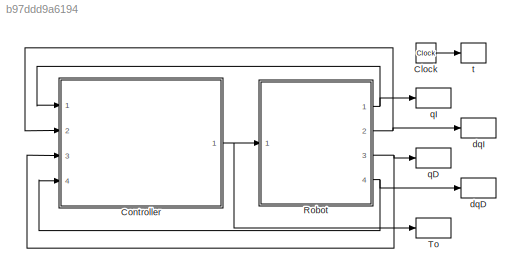
MODEL slx_b97ddd9a6194
KIND model
CONFIG AbsTol = auto
CONFIG FixedStep = t_step
CONFIG MaxStep = auto
CONFIG MinStep = auto
CONFIG RelTol = 1e-3
CONFIG SampleTimeConstraint = Unconstrained
CONFIG Solver = ode3
CONFIG SolverMode = Auto
CONFIG SolverName = ode3
CONFIG StartTime = 0.0
CONFIG StopTime = tf
BLOCK [Clock] Clock
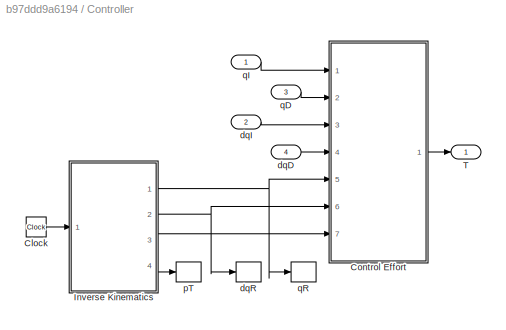
BLOCK [SubSystem] Controller
  Ports = [4, 1]
  RequestExecContextInheritance = off
BLOCK [Clock] Controller/Clock
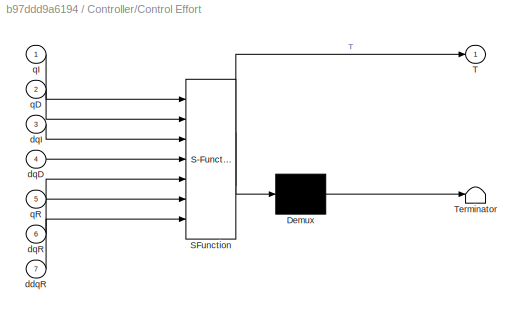
BLOCK [SubSystem] Controller/Control Effort
  ErrorFcn = Stateflow.Translate.translate
  PermitHierarchicalResolution = ExplicitOnly
  Ports = [7, 1]
  RequestExecContextInheritance = off
  SFBlockType = MATLAB Function
  TreatAsAtomicUnit = on
BLOCK [Demux] Controller/Control Effort/ Demux 
  Outputs = 1
  Ports = [1, 1]
BLOCK [S-Function] Controller/Control Effort/ SFunction 
  EnableBusSupport = on
  FunctionName = sf_sfun
  Parameters = J1,J2,J3,Kd,Kp,g,l3,lG2,lG3,m2,m3
  PortCounts = [7 2]
  Ports = [7, 2]
  Tag = Stateflow S-Function RmRmRmUS_Simulink 1
BLOCK [Terminator] Controller/Control Effort/ Terminator 
BLOCK [Outport] Controller/Control Effort/T
  IconDisplay = Port number
BLOCK [Inport] Controller/Control Effort/ddqR
  IconDisplay = Port number
  Port = 7
BLOCK [Inport] Controller/Control Effort/dqD
  IconDisplay = Port number
  Port = 4
BLOCK [Inport] Controller/Control Effort/dqI
  IconDisplay = Port number
  Port = 3
BLOCK [Inport] Controller/Control Effort/dqR
  IconDisplay = Port number
  Port = 6
BLOCK [Inport] Controller/Control Effort/qD
  IconDisplay = Port number
  Port = 2
BLOCK [Inport] Controller/Control Effort/qI
  IconDisplay = Port number
BLOCK [Inport] Controller/Control Effort/qR
  IconDisplay = Port number
  Port = 5
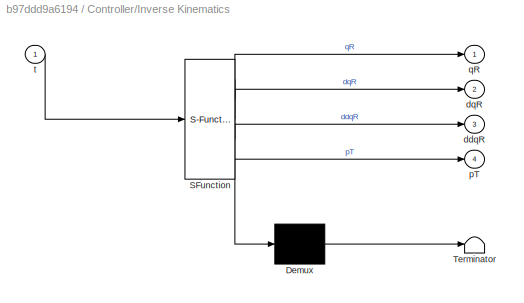
BLOCK [SubSystem] Controller/Inverse Kinematics
  ErrorFcn = Stateflow.Translate.translate
  PermitHierarchicalResolution = ExplicitOnly
  Ports = [1, 4]
  RequestExecContextInheritance = off
  SFBlockType = MATLAB Function
  TreatAsAtomicUnit = on
BLOCK [Demux] Controller/Inverse Kinematics/ Demux 
  Outputs = 1
  Ports = [1, 1]
BLOCK [S-Function] Controller/Inverse Kinematics/ SFunction 
  EnableBusSupport = on
  FunctionName = sf_sfun
  Parameters = a0,a1,a2,a3,a4,a5,l1,l2,l3,l4,lB,ndv,qB0,tf_ik,x0S,y0S,z0S
  PortCounts = [1 5]
  Ports = [1, 5]
  Tag = Stateflow S-Function RmRmRmUS_Simulink 3
BLOCK [Terminator] Controller/Inverse Kinematics/ Terminator 
BLOCK [Outport] Controller/Inverse Kinematics/ddqR
  IconDisplay = Port number
  Port = 3
BLOCK [Outport] Controller/Inverse Kinematics/dqR
  IconDisplay = Port number
  Port = 2
BLOCK [Outport] Controller/Inverse Kinematics/pT
  IconDisplay = Port number
  Port = 4
BLOCK [Outport] Controller/Inverse Kinematics/qR
  IconDisplay = Port number
BLOCK [Inport] Controller/Inverse Kinematics/t
  IconDisplay = Port number
BLOCK [Outport] Controller/T
  IconDisplay = Port number
BLOCK [Inport] Controller/dqD
  IconDisplay = Port number
  Port = 4
BLOCK [Inport] Controller/dqI
  IconDisplay = Port number
  Port = 2
BLOCK [ToWorkspace] Controller/dqR
  FixptAsFi = on
  MaxDataPoints = inf
  Ports = [1]
  SampleTime = -1
  Save2DSignal = 3-D array (concatenate along third dimension)
  VariableName = dqR
BLOCK [ToWorkspace] Controller/pT
  FixptAsFi = on
  MaxDataPoints = inf
  Ports = [1]
  SampleTime = -1
  Save2DSignal = 3-D array (concatenate along third dimension)
  VariableName = pT
BLOCK [Inport] Controller/qD
  IconDisplay = Port number
  Port = 3
BLOCK [Inport] Controller/qI
  IconDisplay = Port number
BLOCK [ToWorkspace] Controller/qR
  FixptAsFi = on
  MaxDataPoints = inf
  Ports = [1]
  SampleTime = -1
  Save2DSignal = 3-D array (concatenate along third dimension)
  VariableName = qR
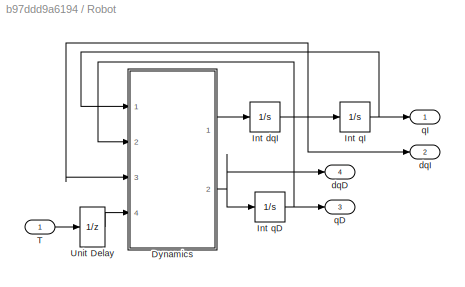
BLOCK [SubSystem] Robot
  Ports = [1, 4]
  RequestExecContextInheritance = off
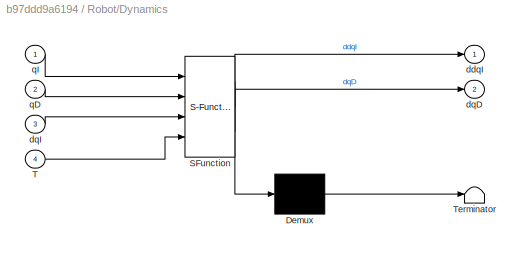
BLOCK [SubSystem] Robot/Dynamics
  ErrorFcn = Stateflow.Translate.translate
  PermitHierarchicalResolution = ExplicitOnly
  Ports = [4, 2]
  RequestExecContextInheritance = off
  SFBlockType = MATLAB Function
  TreatAsAtomicUnit = on
BLOCK [Demux] Robot/Dynamics/ Demux 
  Outputs = 1
  Ports = [1, 1]
BLOCK [S-Function] Robot/Dynamics/ SFunction 
  EnableBusSupport = on
  FunctionName = sf_sfun
  Parameters = J1,J2,J3,g,l3,l4,lB,lG2,lG3,m2,m3
  PortCounts = [4 3]
  Ports = [4, 3]
  Tag = Stateflow S-Function RmRmRmUS_Simulink 2
BLOCK [Terminator] Robot/Dynamics/ Terminator 
BLOCK [Inport] Robot/Dynamics/T
  IconDisplay = Port number
  Port = 4
BLOCK [Outport] Robot/Dynamics/ddqI
  IconDisplay = Port number
BLOCK [Outport] Robot/Dynamics/dqD
  IconDisplay = Port number
  Port = 2
BLOCK [Inport] Robot/Dynamics/dqI
  IconDisplay = Port number
  Port = 3
BLOCK [Inport] Robot/Dynamics/qD
  IconDisplay = Port number
  Port = 2
BLOCK [Inport] Robot/Dynamics/qI
  IconDisplay = Port number
BLOCK [Integrator] Robot/Int dqI
  InitialCondition = dqI0
  Ports = [1, 1]
BLOCK [Integrator] Robot/Int qD
  InitialCondition = qD0
  Ports = [1, 1]
BLOCK [Integrator] Robot/Int qI
  InitialCondition = qI0
  Ports = [1, 1]
BLOCK [Inport] Robot/T
  IconDisplay = Port number
BLOCK [UnitDelay] Robot/Unit Delay
  InitialCondition = T0
  InputProcessing = Elements as channels (sample based)
  SampleTime = -1
BLOCK [Outport] Robot/dqD
  IconDisplay = Port number
  Port = 4
BLOCK [Outport] Robot/dqI
  IconDisplay = Port number
  Port = 2
BLOCK [Outport] Robot/qD
  IconDisplay = Port number
  Port = 3
BLOCK [Outport] Robot/qI
  IconDisplay = Port number
BLOCK [ToWorkspace] To
  FixptAsFi = on
  MaxDataPoints = inf
  Ports = [1]
  SampleTime = -1
  Save2DSignal = 3-D array (concatenate along third dimension)
  VariableName = To
BLOCK [ToWorkspace] dqD
  FixptAsFi = on
  MaxDataPoints = inf
  Ports = [1]
  SampleTime = -1
  Save2DSignal = 3-D array (concatenate along third dimension)
  VariableName = dqD
BLOCK [ToWorkspace] dqI
  FixptAsFi = on
  MaxDataPoints = inf
  Ports = [1]
  SampleTime = -1
  Save2DSignal = 3-D array (concatenate along third dimension)
  VariableName = dqI
BLOCK [ToWorkspace] qD
  FixptAsFi = on
  MaxDataPoints = inf
  Ports = [1]
  SampleTime = -1
  Save2DSignal = 3-D array (concatenate along third dimension)
  VariableName = qD
BLOCK [ToWorkspace] qI
  FixptAsFi = on
  MaxDataPoints = inf
  Ports = [1]
  SampleTime = -1
  Save2DSignal = 3-D array (concatenate along third dimension)
  VariableName = qI
BLOCK [ToWorkspace] t
  FixptAsFi = on
  MaxDataPoints = inf
  Ports = [1]
  SampleTime = -1
  Save2DSignal = 3-D array (concatenate along third dimension)
  VariableName = t
LINE Clock:1 -> t:1
LINE Controller/Clock:1 -> Controller/Inverse Kinematics:1
LINE Controller/Control Effort:1 -> Controller/T:1
NET Controller/Inverse Kinematics:1 -> Controller/Control Effort:5, Controller/qR:1
NET Controller/Inverse Kinematics:2 -> Controller/Control Effort:6, Controller/dqR:1
LINE Controller/Inverse Kinematics:3 -> Controller/Control Effort:7
LINE Controller/Inverse Kinematics:4 -> Controller/pT:1
LINE Controller/dqD:1 -> Controller/Control Effort:4
LINE Controller/dqI:1 -> Controller/Control Effort:3
LINE Controller/qD:1 -> Controller/Control Effort:2
LINE Controller/qI:1 -> Controller/Control Effort:1
NET Controller:1 -> Robot:1, To:1
LINE Robot/Dynamics:1 -> Robot/Int dqI:1
NET Robot/Dynamics:2 -> Robot/Int qD:1, Robot/dqD:1
NET Robot/Int dqI:1 -> Robot/Dynamics:3, Robot/Int qI:1, Robot/dqI:1
NET Robot/Int qD:1 -> Robot/Dynamics:2, Robot/qD:1
NET Robot/Int qI:1 -> Robot/Dynamics:1, Robot/qI:1
LINE Robot/T:1 -> Robot/Unit Delay:1
LINE Robot/Unit Delay:1 -> Robot/Dynamics:4
NET Robot:1 -> Controller:1, qI:1
NET Robot:2 -> Controller:2, dqI:1
NET Robot:3 -> Controller:3, qD:1
NET Robot:4 -> Controller:4, dqD:1
note: NET lines group one-source signal fan-out (src -> all destinations, sorted); 1:1 wires keep LINE
CHART Controller/Control Effort states=1 transitions=1
  STATE_LABEL 'eML_blk_kernel()'
  STATE_LABEL 'SCRIPT:\nfunction T  = fcn(qI, qD, dqI, dqD, qR, dqR, ddqR, Kp, Kd, lG2, l3, ...\n    lG3, m2, m3, g, J1, J2, J3)\n%%% FEEDBACK LINEARIZATION\nq = [qI; qD(1)];\ndq = [dqI; dqD(1)];\nv = ddqR - Kp.*(q-qR) - Kd.*(dq-dqR);\nq2 = qI(2);\nq3 = qD(1);\ndq1 = dqI(1);\ndq2 = dqI(2);\ndq3 = dqD(1);\n% RRR robotic arm dynamics\nH = mtxH_RRR (q2, q3, dq1, dq2, dq3, lG2, l3, lG3, m2, m3);\nG = vecG_RRR (q2, q3, lG2, l3, lG...<+91ch>'
CHART Robot/Dynamics states=1 transitions=1
  STATE_LABEL 'eML_blk_kernel()'
  STATE_LABEL 'SCRIPT:\nfunction [ddqI, dqD] = fcn(qI, qD, dqI, T, l3, l4, lB, lG2, lG3, J1, ...\n    J2, J3, m2, m3, g)\n\nq1 = qI(1);\nq2 = qI(2);\n\nq3 = qD(1);\nq4 = qD(2);\nq5 = qD(3);\n\ndq1 = dqI(1);\ndq2 = dqI(2);\n\nT1 = T(1);\nT2 = T(2);\nT3 = T(3);\n\ndq3 = vg_dq3(q1, q2, q3, q4, q5, dq1, dq2, l3, l4);\ndq4 = vg_dq4(q1, q2, q3, q4, q5, dq1, dq2, l3, l4, lB);\ndq5 = vg_dq5(q1, q2, q3, q4, q5, dq1, dq2, l3, l4, lB);\n\nM = m...<+318ch>'
CHART Controller/Inverse Kinematics states=1 transitions=1
  STATE_LABEL 'eML_blk_kernel()'
  STATE_LABEL 'SCRIPT:\nfunction [qR, dqR, ddqR, pT] = fcn(t, qB0, tf_ik, a0, a1, a2, a3, a4, ...\n    a5, ndv, lB, x0S, y0S, z0S, l1, l2, l3, l4)\n% Time limit\nif t > tf_ik\n    t = tf_ik;\nend\n\n%%% QUINTIC POLYNOMIAL\ntheta = a0 + a1*t + a2*t.^2 + a3*t.^3 + a4*t.^4 + a5*t.^5;\ndtheta = a1 + 2*a2*t + 3*a3*t.^2 + 4*a4*t.^3 + 5*a5*t.^4;\nddtheta = 2*a2 + 6*a3*t + 12*a4*t.^2 + 20*a5*t.^3;\n%%% CUBIC POLYNOMIAL\n%theta = a0 ...<+1297ch>'
